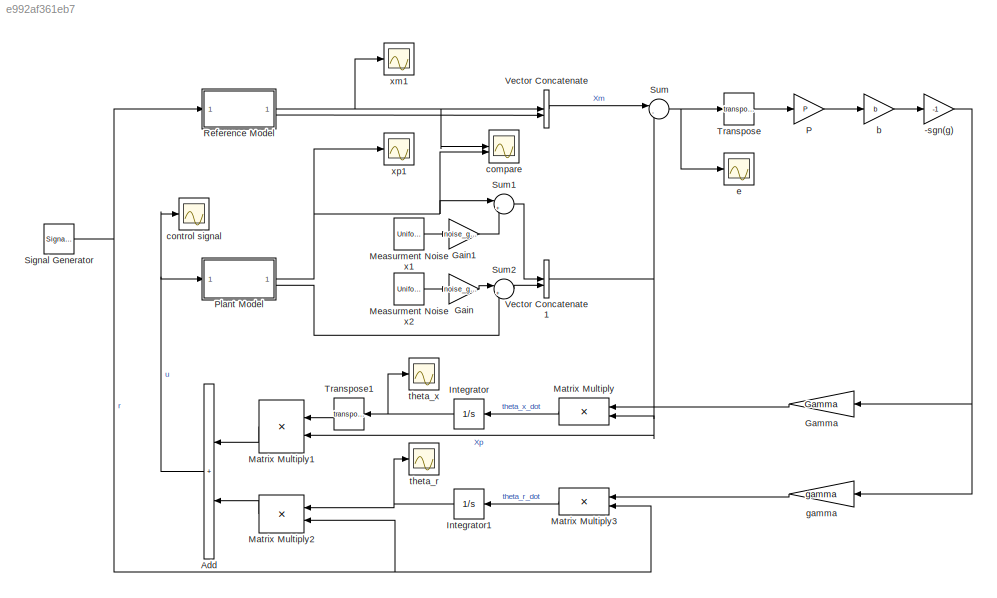
MODEL slx_e992af361eb7
KIND model
CONFIG AbsTol = auto
CONFIG EnableMultiTasking = off
CONFIG FixedStep = auto
CONFIG MaxStep = auto
CONFIG MinStep = auto
CONFIG RelTol = 1e-3
CONFIG SampleTimeConstraint = Unconstrained
CONFIG SolverName = VariableStepAuto
CONFIG StartTime = 0.0
CONFIG StopTime = 120.0
BLOCK [Gain] -sgn(g)
  Gain = -1
BLOCK [Sum] Add
  IconShape = rectangular
BLOCK [Gain] Gain
  Gain = noise_gain_x2
BLOCK [Gain] Gain1
  Gain = noise_gain_x1
BLOCK [Gain] Gamma
  Gain = Gamma
  NameLocation = top
BLOCK [Integrator] Integrator
BLOCK [Integrator] Integrator1
BLOCK [Product] Matrix Multiply
  Multiplication = Matrix(*)
BLOCK [Product] Matrix Multiply1
  Multiplication = Matrix(*)
BLOCK [Product] Matrix Multiply2
  Multiplication = Matrix(*)
BLOCK [Product] Matrix Multiply3
  Multiplication = Matrix(*)
BLOCK [UniformRandomNumber] Measurment Noise x1
  SampleTime = 0.1
BLOCK [UniformRandomNumber] Measurment Noise x2
  SampleTime = 0.1
BLOCK [Gain] P
  Gain = P
  Multiplication = Matrix(u*K)
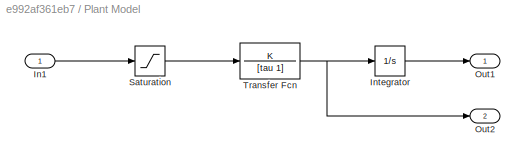
BLOCK [SubSystem] Plant Model
BLOCK [Inport] Plant Model/In1
BLOCK [Integrator] Plant Model/Integrator
BLOCK [Outport] Plant Model/Out1
BLOCK [Outport] Plant Model/Out2
  Port = 2
BLOCK [Saturate] Plant Model/Saturation
  LowerLimit = -5
  UpperLimit = 5
BLOCK [TransferFcn] Plant Model/Transfer Fcn
  Denominator = [tau 1]
  Numerator = K
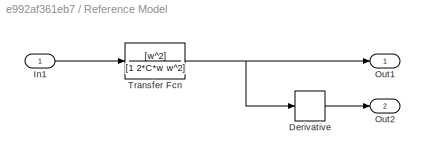
BLOCK [SubSystem] Reference Model
BLOCK [Derivative] Reference Model/Derivative
BLOCK [Inport] Reference Model/In1
BLOCK [Outport] Reference Model/Out1
BLOCK [Outport] Reference Model/Out2
  Port = 2
BLOCK [TransferFcn] Reference Model/Transfer Fcn
  Denominator = [1 2*C*w w^2]
  Numerator = [w^2]
BLOCK [SignalGenerator] Signal Generator
  Frequency = 0.5
  Units = rad/sec
BLOCK [Sum] Sum
  Inputs = |-+
BLOCK [Sum] Sum1
  Inputs = |++
BLOCK [Sum] Sum2
  Inputs = |++
  NameLocation = top
BLOCK [Math] Transpose
  Operator = transpose
BLOCK [Math] Transpose1
  NameLocation = top
  Operator = transpose
BLOCK [Concatenate] Vector Concatenate
BLOCK [Concatenate] Vector Concatenate1
BLOCK [Gain] b
  Gain = b
  Multiplication = Matrix(u*K)
BLOCK [Scope] compare
  Floating = off
  NumInputPorts = 2
  ScopeSpecificationString = Simulink.scopes.TimeScopeBlockCfg('CurrentConfiguration', extmgr.ConfigurationSet(extmgr.Configuration('Core','General UI',true),extmgr.Configuration('Core','Source UI',true),extmgr.Configuration('Sources','WiredSimulink',true,'DataLoggingVariableName','ScopeData2'),extmgr.Configuration('Visuals','Time Domain',true,'SerializedDisplays',{struct('MinYLimReal','-1.33599','MaxYLimReal','1.32816','YLab...<+1768ch>
BLOCK [Scope] control signal
  Floating = off
  NumInputPorts = 1
  ScopeSpecificationString = Simulink.scopes.TimeScopeBlockCfg('CurrentConfiguration', extmgr.ConfigurationSet(extmgr.Configuration('Core','General UI',true),extmgr.Configuration('Core','Source UI',true),extmgr.Configuration('Sources','WiredSimulink',true,'DataLoggingVariableName','ScopeData1'),extmgr.Configuration('Visuals','Time Domain',true,'SerializedDisplays',{struct('MinYLimReal','-0.1031','MaxYLimReal','0.10305','YLabe...<+1591ch>
BLOCK [Scope] e
  Floating = off
  NumInputPorts = 1
  ScopeSpecificationString = Simulink.scopes.TimeScopeBlockCfg('CurrentConfiguration', extmgr.ConfigurationSet(extmgr.Configuration('Core','General UI',true),extmgr.Configuration('Core','Source UI',true),extmgr.Configuration('Sources','WiredSimulink',true,'DataLoggingVariableName','ScopeData4'),extmgr.Configuration('Visuals','Time Domain',true,'SerializedDisplays',{struct('MinYLimReal','-9.10668','MaxYLimReal','8.80081','YLab...<+1842ch>
BLOCK [Gain] gamma
  Gain = gamma
  NameLocation = top
BLOCK [Scope] theta_r
  Floating = off
  NumInputPorts = 1
  ScopeSpecificationString = Simulink.scopes.TimeScopeBlockCfg('CurrentConfiguration', extmgr.ConfigurationSet(extmgr.Configuration('Core','General UI',true),extmgr.Configuration('Core','Source UI',true),extmgr.Configuration('Sources','WiredSimulink',true,'DataLoggingVariableName','ScopeData2'),extmgr.Configuration('Visuals','Time Domain',true,'SerializedDisplays',{struct('MinYLimReal','-0.01445','MaxYLimReal','0.13001','YLab...<+1591ch>
BLOCK [Scope] theta_x
  Floating = off
  NumInputPorts = 1
  ScopeSpecificationString = Simulink.scopes.TimeScopeBlockCfg('CurrentConfiguration', extmgr.ConfigurationSet(extmgr.Configuration('Core','General UI',true),extmgr.Configuration('Core','Source UI',true),extmgr.Configuration('Sources','WiredSimulink',true,'DataLoggingVariableName','ScopeData3'),extmgr.Configuration('Visuals','Time Domain',true,'SerializedDisplays',{struct('MinYLimReal','-0.16657','MaxYLimReal','0.16175','YLab...<+1650ch>
BLOCK [Scope] xm1
  Floating = off
  NumInputPorts = 1
  ScopeSpecificationString = Simulink.scopes.TimeScopeBlockCfg('CurrentConfiguration', extmgr.ConfigurationSet(extmgr.Configuration('Core','General UI',true),extmgr.Configuration('Core','Source UI',true),extmgr.Configuration('Sources','WiredSimulink',true),extmgr.Configuration('Visuals','Time Domain',true,'SerializedDisplays',{struct('MinYLimReal','-1.25006','MaxYLimReal','1.25003','YLabelReal','','MinYLimMag','0.00000','MaxY...<+2180ch>
BLOCK [Scope] xp1
  Floating = off
  NumInputPorts = 1
  ScopeSpecificationString = Simulink.scopes.TimeScopeBlockCfg('CurrentConfiguration', extmgr.ConfigurationSet(extmgr.Configuration('Core','General UI',true),extmgr.Configuration('Core','Source UI',true),extmgr.Configuration('Sources','WiredSimulink',true,'DataLoggingVariableName','ScopeData1'),extmgr.Configuration('Visuals','Time Domain',true,'SerializedDisplays',{struct('MinYLimReal','-1.26485','MaxYLimReal','1.26498','YLab...<+1490ch>
NET -sgn(g):1 -> Gamma:1, gamma:1
NET Add:1 -> Plant Model:1, control signal:1
LINE Gain1:1 -> Sum1:2
LINE Gain:1 -> Sum2:1
LINE Gamma:1 -> Matrix Multiply:1
NET Integrator1:1 -> Matrix Multiply2:1, theta_r:1
NET Integrator:1 -> Transpose1:1, theta_x:1
LINE Matrix Multiply1:1 -> Add:1
LINE Matrix Multiply2:1 -> Add:2
LINE Matrix Multiply3:1 -> Integrator1:1
LINE Matrix Multiply:1 -> Integrator:1
LINE Measurment Noise x1:1 -> Gain1:1
LINE Measurment Noise x2:1 -> Gain:1
LINE P:1 -> b:1
LINE Plant Model/In1:1 -> Plant Model/Saturation:1
LINE Plant Model/Integrator:1 -> Plant Model/Out1:1
LINE Plant Model/Saturation:1 -> Plant Model/Transfer Fcn:1
NET Plant Model/Transfer Fcn:1 -> Plant Model/Integrator:1, Plant Model/Out2:1
NET Plant Model:1 -> Sum1:1, compare:2, xp1:1
LINE Plant Model:2 -> Sum2:2
LINE Reference Model/Derivative:1 -> Reference Model/Out2:1
LINE Reference Model/In1:1 -> Reference Model/Transfer Fcn:1
NET Reference Model/Transfer Fcn:1 -> Reference Model/Derivative:1, Reference Model/Out1:1
NET Reference Model:1 -> Vector Concatenate:1, compare:1, xm1:1
LINE Reference Model:2 -> Vector Concatenate:2
NET Signal Generator:1 -> Matrix Multiply2:2, Matrix Multiply3:2, Reference Model:1
LINE Sum1:1 -> Vector Concatenate1:1
LINE Sum2:1 -> Vector Concatenate1:2
NET Sum:1 -> Transpose:1, e:1
LINE Transpose1:1 -> Matrix Multiply1:1
LINE Transpose:1 -> P:1
NET Vector Concatenate1:1 -> Matrix Multiply1:2, Matrix Multiply:2, Sum:2
LINE Vector Concatenate:1 -> Sum:1
LINE b:1 -> -sgn(g):1
LINE gamma:1 -> Matrix Multiply3:1
note: NET lines group one-source signal fan-out (src -> all destinations, sorted); 1:1 wires keep LINE
